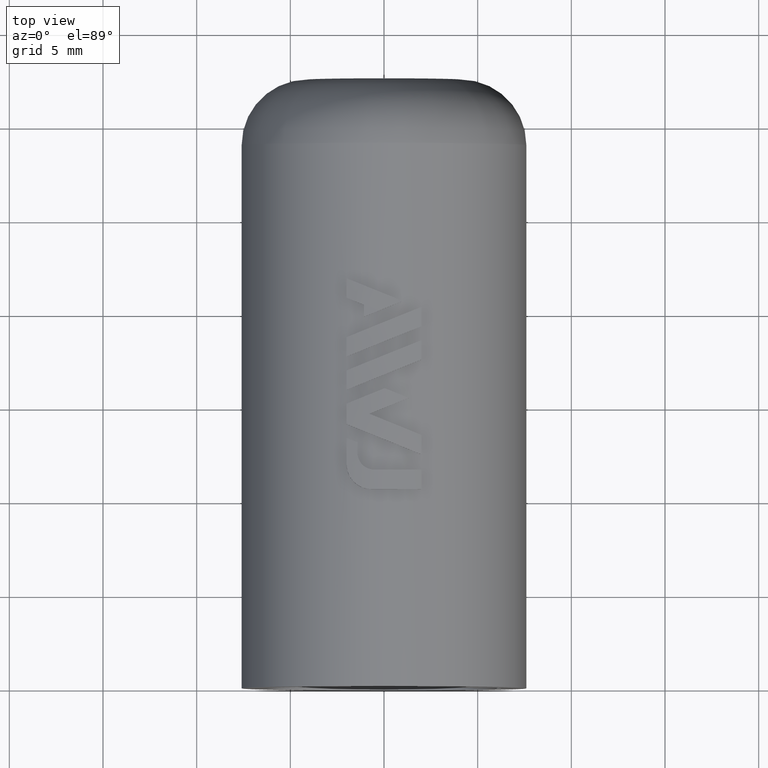
[diagram: clean part render]
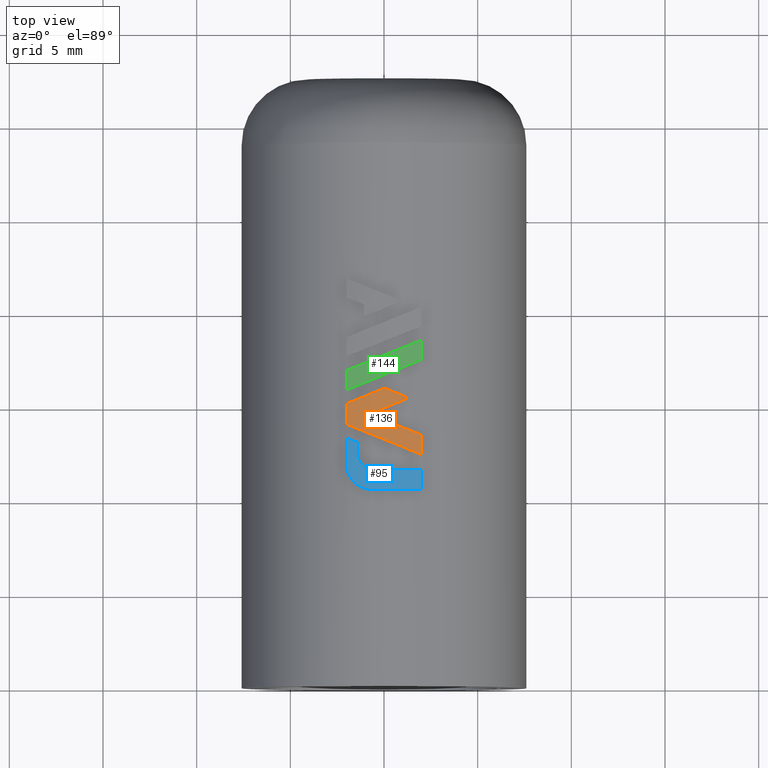
[diagram: same view with three faces highlighted in distinct colors, each labeled with its STEP entity id]
A machine part, top view with three faces highlighted in distinct colors.
Their STEP definitions:

[orange] entity #136 — the highlighted cylindrical surface (partial cylindrical patch) has radius 7.8 mm, axis along (-0, 1, 0).
#136=ADVANCED_FACE('',(#278),#279,.T.);
#278=FACE_OUTER_BOUND('',#1803,.T.);
#279=CYLINDRICAL_SURFACE('',#1804,7.8);
#1803=EDGE_LOOP('',(#2319,#2320,#2321,#2322,#2323,#2324,#2325));
#1804=AXIS2_PLACEMENT_3D('',#2326,#2327,#2328);
#2319=ORIENTED_EDGE('',*,*,#2712,.F.);
#2320=ORIENTED_EDGE('',*,*,#2713,.F.);
#2321=ORIENTED_EDGE('',*,*,#2714,.F.);
#2322=ORIENTED_EDGE('',*,*,#2715,.F.);
#2323=ORIENTED_EDGE('',*,*,#2716,.F.);
#2324=ORIENTED_EDGE('',*,*,#2717,.F.);
#2325=ORIENTED_EDGE('',*,*,#2718,.F.);
#2326=CARTESIAN_POINT('',(0.0,29.5367470448046,0.0));
#2327=DIRECTION('',(-0.0,1.0,0.0));
#2328=DIRECTION('',(1.0,0.0,-6.12323399573677E-17));
#2712=EDGE_CURVE('',#3045,#3046,#3047,.T.);
#2713=EDGE_CURVE('',#3048,#3045,#3049,.F.);
#2714=EDGE_CURVE('',#3050,#3048,#3051,.T.);
#2715=EDGE_CURVE('',#3052,#3050,#3053,.T.);
#2716=EDGE_CURVE('',#3054,#3052,#3055,.T.);
#2717=EDGE_CURVE('',#3056,#3054,#3057,.T.);
#2718=EDGE_CURVE('',#3046,#3056,#3058,.T.);
#3045=VERTEX_POINT('',#4174);
#3046=VERTEX_POINT('',#4175);
#3047=ELLIPSE('',#4176,8.41277677264249,7.8);
#3048=VERTEX_POINT('',#4177);
#3049=LINE('',#4178,#4179);
#3050=VERTEX_POINT('',#4180);
#3051=ELLIPSE('',#4181,8.41251188769509,7.8);
#3052=VERTEX_POINT('',#4182);
#3053=LINE('',#4183,#4184);
#3054=VERTEX_POINT('',#4185);
#3055=ELLIPSE('',#4186,8.41270980951058,7.8);
#3056=VERTEX_POINT('',#4187);
#3057=ELLIPSE('',#4188,8.41262551840312,7.8);
#3058=ELLIPSE('',#4189,8.41236337548325,7.8);
#4174=CARTESIAN_POINT('',(-1.998,15.067093832,7.53976100416983));
#4175=CARTESIAN_POINT('',(0.0363609360000095,15.889172264,7.79991524840708));
#4176=AXIS2_PLACEMENT_3D('',#4621,#4622,#4623);
#4177=CARTESIAN_POINT('',(-1.998,13.976331464,7.53976100416983));
#4178=CARTESIAN_POINT('',(-1.998,29.5367470448046,7.53976100416983));
#4179=VECTOR('',#4624,1000.0);
#4180=CARTESIAN_POINT('',(1.99507670400001,12.363104528,7.54053505695428));
#4181=AXIS2_PLACEMENT_3D('',#4625,#4626,#4627);
#4182=CARTESIAN_POINT('',(1.99507670400001,13.394956088,7.54053505695428));
#4183=CARTESIAN_POINT('',(1.99507670400001,29.5367470448046,7.54053505695428));
#4184=VECTOR('',#4628,1000.0);
#4185=CARTESIAN_POINT('',(-0.793697063999991,14.521826312,7.75951319159893));
#4186=AXIS2_PLACEMENT_3D('',#4629,#4630,#4631);
#4187=CARTESIAN_POINT('',(1.31354558400002,15.373246928,7.68860182339767));
#4188=AXIS2_PLACEMENT_3D('',#4632,#4633,#4634);
#4189=AXIS2_PLACEMENT_3D('',#4635,#4636,#4637);
#4621=CARTESIAN_POINT('',(0.0,15.874478931699,0.0));
#4622=DIRECTION('',(-0.374662721697119,0.927161175292898,1.84889274661174E-32));
#4623=DIRECTION('',(-0.927161175292898,-0.374662721697119,-2.46519032881566E-32));
#4624=DIRECTION('',(0.0,-1.0,0.0));
#4625=CARTESIAN_POINT('',(0.0,13.1691274814421,0.0));
#4626=DIRECTION('',(-0.374590469627021,-0.927190368837278,-1.23259516440783E-32));
#4627=DIRECTION('',(0.927190368837278,-0.374590469627021,-2.46519032881566E-32));
#4628=DIRECTION('',(0.0,-1.0,0.0));
#4629=CARTESIAN_POINT('',(0.0,14.2011141773118,0.0));
#4630=DIRECTION('',(0.37464445827513,0.927168555271227,1.54074395550979E-32));
#4631=DIRECTION('',(0.927168555271227,-0.37464445827513,1.62665248481549E-48));
#4632=CARTESIAN_POINT('',(0.0,14.8425155519362,0.0));
#4633=DIRECTION('',(0.374621466961797,-0.927177845125406,3.6977854932235E-32));
#4634=DIRECTION('',(-0.927177845125406,-0.374621466961797,-4.93038065763132E-32));
#4635=CARTESIAN_POINT('',(0.0,15.9038604519237,0.0));
#4636=DIRECTION('',(0.374549951201191,0.927206737494495,3.38963670212154E-32));
#4637=DIRECTION('',(0.927206737494495,-0.374549951201191,2.46519032881566E-32));

[blue] entity #95 — the highlighted cylindrical surface (partial cylindrical patch) has radius 7.8 mm, axis along (-0, 1, 0).
#95=ADVANCED_FACE('',(#191),#192,.T.);
#191=FACE_OUTER_BOUND('',#1716,.T.);
#192=CYLINDRICAL_SURFACE('',#1717,7.8);
#1716=EDGE_LOOP('',(#1936,#1937,#1938,#1939,#1940,#1941,#1942,#1943,#1944,#1945,#1946,#1947,#1948,#1949,#1950,#1951,#1952,#1953,#1954,#1955,#1956,#1957,#1958,#1959,#1960,#1961,#1962,#1963,#1964,#1965,#1966,#1967,#1968,#1969,#1970,#1971,#1972,#1973,#1974,#1975));
#1717=AXIS2_PLACEMENT_3D('',#1976,#1977,#1978);
#1936=ORIENTED_EDGE('',*,*,#2571,.T.);
#1937=ORIENTED_EDGE('',*,*,#2572,.T.);
#1938=ORIENTED_EDGE('',*,*,#2573,.T.);
#1939=ORIENTED_EDGE('',*,*,#2574,.T.);
#1940=ORIENTED_EDGE('',*,*,#2575,.T.);
#1941=ORIENTED_EDGE('',*,*,#2576,.T.);
#1942=ORIENTED_EDGE('',*,*,#2577,.T.);
#1943=ORIENTED_EDGE('',*,*,#2578,.T.);
#1944=ORIENTED_EDGE('',*,*,#2579,.T.);
#1945=ORIENTED_EDGE('',*,*,#2580,.T.);
#1946=ORIENTED_EDGE('',*,*,#2581,.T.);
#1947=ORIENTED_EDGE('',*,*,#2582,.T.);
#1948=ORIENTED_EDGE('',*,*,#2583,.T.);
#1949=ORIENTED_EDGE('',*,*,#2584,.T.);
#1950=ORIENTED_EDGE('',*,*,#2585,.T.);
#1951=ORIENTED_EDGE('',*,*,#2586,.T.);
#1952=ORIENTED_EDGE('',*,*,#2587,.T.);
#1953=ORIENTED_EDGE('',*,*,#2588,.T.);
#1954=ORIENTED_EDGE('',*,*,#2589,.T.);
#1955=ORIENTED_EDGE('',*,*,#2590,.T.);
#1956=ORIENTED_EDGE('',*,*,#2591,.T.);
#1957=ORIENTED_EDGE('',*,*,#2592,.T.);
#1958=ORIENTED_EDGE('',*,*,#2593,.T.);
#1959=ORIENTED_EDGE('',*,*,#2594,.T.);
#1960=ORIENTED_EDGE('',*,*,#2595,.T.);
#1961=ORIENTED_EDGE('',*,*,#2596,.T.);
#1962=ORIENTED_EDGE('',*,*,#2597,.T.);
#1963=ORIENTED_EDGE('',*,*,#2598,.T.);
#1964=ORIENTED_EDGE('',*,*,#2599,.T.);
#1965=ORIENTED_EDGE('',*,*,#2600,.T.);
#1966=ORIENTED_EDGE('',*,*,#2601,.T.);
#1967=ORIENTED_EDGE('',*,*,#2602,.T.);
#1968=ORIENTED_EDGE('',*,*,#2603,.T.);
#1969=ORIENTED_EDGE('',*,*,#2604,.T.);
#1970=ORIENTED_EDGE('',*,*,#2605,.T.);
#1971=ORIENTED_EDGE('',*,*,#2606,.T.);
#1972=ORIENTED_EDGE('',*,*,#2607,.T.);
#1973=ORIENTED_EDGE('',*,*,#2608,.T.);
#1974=ORIENTED_EDGE('',*,*,#2609,.T.);
#1975=ORIENTED_EDGE('',*,*,#2610,.T.);
#1976=CARTESIAN_POINT('',(0.0,27.0748331428391,0.0));
#1977=DIRECTION('',(-0.0,1.0,0.0));
#1978=DIRECTION('',(1.0,0.0,-6.12323399573677E-17));
#2571=EDGE_CURVE('',#2804,#2805,#2806,.T.);
#2572=EDGE_CURVE('',#2805,#2807,#2808,.T.);
#2573=EDGE_CURVE('',#2807,#2809,#2810,.T.);
#2574=EDGE_CURVE('',#2809,#2811,#2812,.T.);
#2575=EDGE_CURVE('',#2811,#2813,#2814,.T.);
#2576=EDGE_CURVE('',#2813,#2815,#2816,.T.);
#2577=EDGE_CURVE('',#2815,#2817,#2818,.T.);
#2578=EDGE_CURVE('',#2817,#2819,#2820,.T.);
#2579=EDGE_CURVE('',#2819,#2821,#2822,.T.);
#2580=EDGE_CURVE('',#2821,#2823,#2824,.T.);
#2581=EDGE_CURVE('',#2823,#2825,#2826,.T.);
#2582=EDGE_CURVE('',#2825,#2827,#2828,.T.);
#2583=EDGE_CURVE('',#2827,#2829,#2830,.T.);
#2584=EDGE_CURVE('',#2829,#2831,#2832,.T.);
#2585=EDGE_CURVE('',#2831,#2833,#2834,.T.);
#2586=EDGE_CURVE('',#2833,#2835,#2836,.T.);
#2587=EDGE_CURVE('',#2835,#2837,#2838,.F.);
#2588=EDGE_CURVE('',#2837,#2839,#2840,.T.);
#2589=EDGE_CURVE('',#2839,#2841,#2842,.T.);
#2590=EDGE_CURVE('',#2841,#2843,#2844,.T.);
#2591=EDGE_CURVE('',#2843,#2845,#2846,.T.);
#2592=EDGE_CURVE('',#2845,#2847,#2848,.F.);
#2593=EDGE_CURVE('',#2847,#2849,#2850,.T.);
#2594=EDGE_CURVE('',#2849,#2851,#2852,.T.);
#2595=EDGE_CURVE('',#2851,#2853,#2854,.T.);
#2596=EDGE_CURVE('',#2853,#2855,#2856,.T.);
#2597=EDGE_CURVE('',#2855,#2857,#2858,.T.);
#2598=EDGE_CURVE('',#2857,#2859,#2860,.T.);
#2599=EDGE_CURVE('',#2859,#2861,#2862,.T.);
#2600=EDGE_CURVE('',#2861,#2863,#2864,.T.);
#2601=EDGE_CURVE('',#2863,#2865,#2866,.T.);
#2602=EDGE_CURVE('',#2865,#2867,#2868,.T.);
#2603=EDGE_CURVE('',#2867,#2869,#2870,.T.);
#2604=EDGE_CURVE('',#2869,#2871,#2872,.T.);
#2605=EDGE_CURVE('',#2871,#2873,#2874,.T.);
#2606=EDGE_CURVE('',#2873,#2875,#2876,.T.);
#2607=EDGE_CURVE('',#2875,#2877,#2878,.T.);
#2608=EDGE_CURVE('',#2877,#2879,#2880,.T.);
#2609=EDGE_CURVE('',#2879,#2881,#2882,.T.);
#2610=EDGE_CURVE('',#2881,#2804,#2883,.T.);
#2804=VERTEX_POINT('',#3853);
#2805=VERTEX_POINT('',#3854);
#2806=ELLIPSE('',#3855,11.7650962507718,7.8);
#2807=VERTEX_POINT('',#3856);
#2808=ELLIPSE('',#3857,12.4599259104884,7.8);
#2809=VERTEX_POINT('',#3858);
#2810=ELLIPSE('',#3859,13.2809841174273,7.80000000000001);
#2811=VERTEX_POINT('',#3860);
#2812=ELLIPSE('',#3861,14.2661504048244,7.79999999999999);
#2813=VERTEX_POINT('',#3862);
#2814=ELLIPSE('',#3863,15.4628920495116,7.8);
#2815=VERTEX_POINT('',#3864);
#2816=ELLIPSE('',#3865,16.9057404139397,7.8);
#2817=VERTEX_POINT('',#3866);
#2818=ELLIPSE('',#3867,18.6727673346201,7.8);
#2819=VERTEX_POINT('',#3868);
#2820=ELLIPSE('',#3869,20.8950571016526,7.80000000000001);
#2821=VERTEX_POINT('',#3870);
#2822=ELLIPSE('',#3871,23.7838140842857,7.8);
#2823=VERTEX_POINT('',#3872);
#2824=ELLIPSE('',#3873,27.7092850225379,7.8);
#2825=VERTEX_POINT('',#3874);
#2826=ELLIPSE('',#3875,33.3692059199857,7.8);
#2827=VERTEX_POINT('',#3876);
#2828=ELLIPSE('',#3877,41.3722913109222,7.8);
#2829=VERTEX_POINT('',#3878);
#2830=ELLIPSE('',#3879,53.0787072261212,7.8);
#2831=VERTEX_POINT('',#3880);
#2832=ELLIPSE('',#3881,74.0732230087587,7.8);
#2833=VERTEX_POINT('',#3882);
#2834=ELLIPSE('',#3883,122.953485304083,7.8);
#2835=VERTEX_POINT('',#3884);
#2836=ELLIPSE('',#3885,367.022401513407,7.8);
#2837=VERTEX_POINT('',#3886);
#2838=LINE('',#3887,#3888);
#2839=VERTEX_POINT('',#3889);
#2840=ELLIPSE('',#3890,8.41256841345968,7.80000000000001);
#2841=VERTEX_POINT('',#3891);
#2842=B_SPLINE_CURVE_WITH_KNOTS('',3,(#3892,#3893,#3894,#3895),.UNSPECIFIED.,.F.,.F.,(4,4),(0.00147741781550362,0.00287876255302446),.UNSPECIFIED.);
#2843=VERTEX_POINT('',#3896);
#2844=B_SPLINE_CURVE_WITH_KNOTS('',3,(#3897,#3898,#3899,#3900,#3901,#3902,#3903,#3904,#3905,#3906,#3907,#3908),.UNSPECIFIED.,.F.,.F.,(4,2,2,2,2,4),(0.0,0.000261985729409394,0.000523971458818788,0.00104794291763758,0.00157191437645636,0.00209588583527515),.UNSPECIFIED.);
#2845=VERTEX_POINT('',#3909);
#2846=CIRCLE('',#3910,7.8);
#2847=VERTEX_POINT('',#3911);
#2848=LINE('',#3912,#3913);
#2849=VERTEX_POINT('',#3914);
#2850=CIRCLE('',#3915,7.8);
#2851=VERTEX_POINT('',#3916);
#2852=ELLIPSE('',#3917,7.80237481704781,7.8);
#2853=VERTEX_POINT('',#3918);
#2854=ELLIPSE('',#3919,7.82110616245349,7.8);
#2855=VERTEX_POINT('',#3920);
#2856=ELLIPSE('',#3921,7.8581062261192,7.8);
#2857=VERTEX_POINT('',#3922);
#2858=ELLIPSE('',#3923,7.91347834979809,7.8);
#2859=VERTEX_POINT('',#3924);
#2860=ELLIPSE('',#3925,7.98801108495477,7.8);
#2861=VERTEX_POINT('',#3926);
#2862=ELLIPSE('',#3927,8.08317653005841,7.80000000000001);
#2863=VERTEX_POINT('',#3928);
#2864=ELLIPSE('',#3929,8.20106277822163,7.8);
#2865=VERTEX_POINT('',#3930);
#2866=ELLIPSE('',#3931,8.34385025269713,7.8);
#2867=VERTEX_POINT('',#3932);
#2868=ELLIPSE('',#3933,8.51032923826545,7.8);
#2869=VERTEX_POINT('',#3934);
#2870=ELLIPSE('',#3935,8.70224246327736,7.8);
#2871=VERTEX_POINT('',#3936);
#2872=ELLIPSE('',#3937,8.92239981579579,7.80000000000001);
#2873=VERTEX_POINT('',#3938);
#2874=ELLIPSE('',#3939,9.17534842239278,7.8);
#2875=VERTEX_POINT('',#3940);
#2876=ELLIPSE('',#3941,9.46682861404966,7.80000000000001);
#2877=VERTEX_POINT('',#3942);
#2878=ELLIPSE('',#3943,9.80391155438738,7.8);
#2879=VERTEX_POINT('',#3944);
#2880=ELLIPSE('',#3945,10.1983645079124,7.8);
#2881=VERTEX_POINT('',#3946);
#2882=ELLIPSE('',#3947,10.6512493010373,7.79999999999999);
#2883=ELLIPSE('',#3948,11.1685235657731,7.8);
#3853=CARTESIAN_POINT('',(-1.17945136799999,11.827329728,7.71031091918626));
#3854=CARTESIAN_POINT('',(-1.208268744,11.859870488,7.70584756157768));
#3855=AXIS2_PLACEMENT_3D('',#4314,#4315,#4316);
#3856=CARTESIAN_POINT('',(-1.23548328,11.893771664,7.70153108575434));
#3857=AXIS2_PLACEMENT_3D('',#4317,#4318,#4319);
#3858=CARTESIAN_POINT('',(-1.26099374399998,11.928927584,7.69739532423747));
#3859=AXIS2_PLACEMENT_3D('',#4320,#4321,#4322);
#3860=CARTESIAN_POINT('',(-1.284698904,11.965229912,7.69347442486561));
#3861=AXIS2_PLACEMENT_3D('',#4323,#4324,#4325);
#3862=CARTESIAN_POINT('',(-1.30648332,12.002518808,7.68980502578328));
#3863=AXIS2_PLACEMENT_3D('',#4326,#4327,#4328);
#3864=CARTESIAN_POINT('',(-1.32649528799999,12.041000288,7.68637822715704));
#3865=AXIS2_PLACEMENT_3D('',#4329,#4330,#4331);
#3866=CARTESIAN_POINT('',(-1.34466820799999,12.080527832,7.6832198595637));
#3867=AXIS2_PLACEMENT_3D('',#4332,#4333,#4334);
#3868=CARTESIAN_POINT('',(-1.36093636799999,12.120957584,7.68035495288174));
#3869=AXIS2_PLACEMENT_3D('',#4335,#4336,#4337);
#3870=CARTESIAN_POINT('',(-1.37523405599999,12.162143024,7.67780771387366));
#3871=AXIS2_PLACEMENT_3D('',#4338,#4339,#4340);
#3872=CARTESIAN_POINT('',(-1.38749556,12.203940296,7.67560134914394));
#3873=AXIS2_PLACEMENT_3D('',#4341,#4342,#4343);
#3874=CARTESIAN_POINT('',(-1.397656056,12.246203768,7.67375772025196));
#3875=AXIS2_PLACEMENT_3D('',#4344,#4345,#4346);
#3876=CARTESIAN_POINT('',(-1.404704112,12.28291724,7.67247068145133));
#3877=AXIS2_PLACEMENT_3D('',#4347,#4348,#4349);
#3878=CARTESIAN_POINT('',(-1.410208824,12.319969928,7.67146081738756));
#3879=AXIS2_PLACEMENT_3D('',#4350,#4351,#4352);
#3880=CARTESIAN_POINT('',(-1.41415687199999,12.3572543840001,7.6707340158146));
#3881=AXIS2_PLACEMENT_3D('',#4353,#4354,#4355);
#3882=CARTESIAN_POINT('',(-1.41653493599999,12.394664936,7.67029522085633));
#3883=AXIS2_PLACEMENT_3D('',#4356,#4357,#4358);
#3884=CARTESIAN_POINT('',(-1.41733058399999,12.432095024,7.67014823948392));
#3885=AXIS2_PLACEMENT_3D('',#4359,#4360,#4361);
#3886=CARTESIAN_POINT('',(-1.41733058399998,12.999281048,7.67014823948392));
#3887=CARTESIAN_POINT('',(-1.41733058399998,27.0748331428391,7.67014823948392));
#3888=VECTOR('',#4362,1000.0);
#3889=CARTESIAN_POINT('',(-1.998,13.233886208,7.53976100416983));
#3890=AXIS2_PLACEMENT_3D('',#4363,#4364,#4365);
#3891=CARTESIAN_POINT('',(-1.99799999185211,11.8325414704792,7.53976100632898));
#3892=CARTESIAN_POINT('',(-1.998,13.233886208,7.53976100416983));
#3893=CARTESIAN_POINT('',(-1.99799999728404,12.7667712954931,7.53976100488954));
#3894=CARTESIAN_POINT('',(-1.99799999456808,12.2996563829861,7.53976100560926));
#3895=CARTESIAN_POINT('',(-1.99799999185211,11.8325414704792,7.53976100632898));
#3896=CARTESIAN_POINT('',(-0.666,10.5005414,7.77151491023468));
#3897=CARTESIAN_POINT('',(-1.99799999185211,11.8325414704792,7.53976100632898));
#3898=CARTESIAN_POINT('',(-1.99799019408182,11.7439316031863,7.53976360269045));
#3899=CARTESIAN_POINT('',(-1.9891178966469,11.6568997627817,7.54212988747437));
#3900=CARTESIAN_POINT('',(-1.9548703115108,11.4857665495253,7.55107908258607));
#3901=CARTESIAN_POINT('',(-1.92905123854332,11.400740847317,7.55777499211181));
#3902=CARTESIAN_POINT('',(-1.8281797387315,11.1587737407685,7.58304456614601));
#3903=CARTESIAN_POINT('',(-1.72885870146465,11.0114060196132,7.60701594226436));
#3904=CARTESIAN_POINT('',(-1.48407009154669,10.7673172107618,7.65853640840538));
#3905=CARTESIAN_POINT('',(-1.33634032192768,10.6686693047914,7.68636908654674));
#3906=CARTESIAN_POINT('',(-1.0170802407622,10.5361057887401,7.73509036627771));
#3907=CARTESIAN_POINT('',(-0.842422018792072,10.5005609177496,7.75639597063634));
#3908=CARTESIAN_POINT('',(-0.666,10.5005414,7.77151491023469));
#3909=CARTESIAN_POINT('',(1.99507670400001,10.5005414,7.54053505695428));
#3910=AXIS2_PLACEMENT_3D('',#4366,#4367,#4368);
#3911=CARTESIAN_POINT('',(1.99507670400001,11.544095024,7.54053505695428));
#3912=CARTESIAN_POINT('',(1.99507670400001,27.0748331428391,7.54053505695428));
#3913=VECTOR('',#4369,1000.0);
#3914=CARTESIAN_POINT('',(-0.529330583999991,11.544095024,7.78201832000171));
#3915=AXIS2_PLACEMENT_3D('',#4370,#4371,#4372);
#3916=CARTESIAN_POINT('',(-0.572258279999991,11.545154408,7.7789793971299));
#3917=AXIS2_PLACEMENT_3D('',#4373,#4374,#4375);
#3918=CARTESIAN_POINT('',(-0.615165551999994,11.548313024,7.7757039130636));
#3919=AXIS2_PLACEMENT_3D('',#4376,#4377,#4378);
#3920=CARTESIAN_POINT('',(-0.657906767999975,11.553539792,7.77220423590501));
#3921=AXIS2_PLACEMENT_3D('',#4379,#4380,#4381);
#3922=CARTESIAN_POINT('',(-0.700336295999985,11.560803632,7.76849593373807));
#3923=AXIS2_PLACEMENT_3D('',#4382,#4383,#4384);
#3924=CARTESIAN_POINT('',(-0.742307615999996,11.570074352,7.76459782623855));
#3925=AXIS2_PLACEMENT_3D('',#4385,#4386,#4387);
#3926=CARTESIAN_POINT('',(-0.783674207999981,11.58132176,7.76053185907484));
#3927=AXIS2_PLACEMENT_3D('',#4388,#4389,#4390);
#3928=CARTESIAN_POINT('',(-0.824290439999991,11.594513,7.75632292201174));
#3929=AXIS2_PLACEMENT_3D('',#4391,#4392,#4393);
#3930=CARTESIAN_POINT('',(-0.864148319999996,11.609654288,7.75198346754179));
#3931=AXIS2_PLACEMENT_3D('',#4394,#4395,#4396);
#3932=CARTESIAN_POINT('',(-0.903308231999983,11.62674296,7.74751794047624));
#3933=AXIS2_PLACEMENT_3D('',#4397,#4398,#4399);
#3934=CARTESIAN_POINT('',(-0.941648519999992,11.645709752,7.7429515086162));
#3935=AXIS2_PLACEMENT_3D('',#4400,#4401,#4402);
#3936=CARTESIAN_POINT('',(-0.979048415999992,11.666482736,7.73831145658586));
#3937=AXIS2_PLACEMENT_3D('',#4403,#4404,#4405);
#3938=CARTESIAN_POINT('',(-1.01538715199999,11.688993536,7.73362715234924));
#3939=AXIS2_PLACEMENT_3D('',#4406,#4407,#4408);
#3940=CARTESIAN_POINT('',(-1.05054218399999,11.713172888,7.72893014068807));
#3941=AXIS2_PLACEMENT_3D('',#4409,#4410,#4411);
#3942=CARTESIAN_POINT('',(-1.08439274399999,11.738948864,7.72425351582664));
#3943=AXIS2_PLACEMENT_3D('',#4412,#4413,#4414);
#3944=CARTESIAN_POINT('',(-1.11741213599999,11.766761912,7.71954597876844));
#3945=AXIS2_PLACEMENT_3D('',#4415,#4416,#4417);
#3946=CARTESIAN_POINT('',(-1.149131496,11.79625772,7.71488799691226));
#3947=AXIS2_PLACEMENT_3D('',#4418,#4419,#4420);
#3948=AXIS2_PLACEMENT_3D('',#4421,#4422,#4423);
#4314=CARTESIAN_POINT('',(0.0,10.4954859162054,0.0));
#4315=DIRECTION('',(-0.748638877900155,-0.662978001517695,-5.54667823983524E-32));
#4316=DIRECTION('',(0.662978001517695,-0.748638877900155,-2.46519032881566E-32));
#4317=CARTESIAN_POINT('',(0.0,10.3547288480451,0.0));
#4318=DIRECTION('',(-0.779817491661594,-0.626006932628241,-4.93038065763132E-32));
#4319=DIRECTION('',(0.626006932628241,-0.779817491661594,-1.23259516440783E-32));
#4320=CARTESIAN_POINT('',(0.0,10.1911545985863,0.0));
#4321=DIRECTION('',(-0.809365065349924,-0.587305875154602,6.16297582203915E-33));
#4322=DIRECTION('',(0.587305875154602,-0.809365065349925,-1.84889274661174E-32));
#4323=CARTESIAN_POINT('',(0.0,9.99782867976858,0.0));
#4324=DIRECTION('',(-0.837296719685791,-0.546748756929006,-6.16297582203916E-32));
#4325=DIRECTION('',(0.546748756929006,-0.837296719685791,3.08148791101958E-32));
#4326=CARTESIAN_POINT('',(0.0,9.76618065483561,0.0));
#4327=DIRECTION('',(-0.863450573828864,-0.504433451066249,-1.23259516440783E-32));
#4328=DIRECTION('',(0.504433451066249,-0.863450573828864,6.16297582203916E-33));
#4329=CARTESIAN_POINT('',(0.0,9.49025156127408,0.0));
#4330=DIRECTION('',(-0.887201716676645,-0.461381744248745,1.23259516440783E-32));
#4331=DIRECTION('',(0.461381744248745,-0.887201716676645,-1.84889274661174E-32));
#4332=CARTESIAN_POINT('',(0.0,9.1557677077534,0.0));
#4333=DIRECTION('',(-0.90857552317143,-0.417720622777667,-1.23259516440783E-32));
#4334=DIRECTION('',(0.417720622777667,-0.90857552317143,9.24446373305873E-33));
#4335=CARTESIAN_POINT('',(0.0,8.73874841922558,0.0));
#4336=DIRECTION('',(-0.927713085904695,-0.3732940265276,2.46519032881566E-32));
#4337=DIRECTION('',(0.3732940265276,-0.927713085904695,2.1570415377137E-32));
#4338=CARTESIAN_POINT('',(0.0,8.20068997653336,0.0));
#4339=DIRECTION('',(-0.944693648842253,-0.32795412764152,4.93038065763132E-32));
#4340=DIRECTION('',(0.32795412764152,-0.944693648842253,3.08148791101958E-33));
#4341=CARTESIAN_POINT('',(0.0,7.4742163306441,0.0));
#4342=DIRECTION('',(-0.959562961313934,-0.281494091011576,-4.93038065763132E-32));
#4343=DIRECTION('',(0.281494091011576,-0.959562961313934,3.08148791101958E-33));
#4344=CARTESIAN_POINT('',(0.0,6.43253112954168,0.0));
#4345=DIRECTION('',(-0.972297107053996,-0.233748445159385,3.36488471030737E-49));
#4346=DIRECTION('',(0.233748445159385,-0.972297107053996,-6.16297582203916E-33));
#4347=CARTESIAN_POINT('',(0.0,4.96578396463771,0.0));
#4348=DIRECTION('',(-0.98206705091807,-0.188531980048705,-3.69778549322349E-32));
#4349=DIRECTION('',(0.188531980048705,-0.98206705091807,7.70371977754894E-33));
#4350=CARTESIAN_POINT('',(0.0,2.82773353660667,0.0));
#4351=DIRECTION('',(-0.989143686495174,-0.146951582049109,7.39557098644699E-32));
#4352=DIRECTION('',(0.146951582049109,-0.989143686495174,1.15009346733858E-47));
#4353=CARTESIAN_POINT('',(0.0,-0.997717407450773,0.0));
#4354=DIRECTION('',(-0.994440372875624,-0.105301209845799,-2.46519032881566E-32));
#4355=DIRECTION('',(0.105301209845799,-0.994440372875624,1.00148357108136E-32));
#4356=CARTESIAN_POINT('',(0.0,-9.88957715458799,0.0));
#4357=DIRECTION('',(-0.997985741835146,-0.0634386246205985,1.23259516440783E-32));
#4358=DIRECTION('',(0.0634386246205985,-0.997985741835146,-7.70371977754894E-34));
#4359=CARTESIAN_POINT('',(0.0,-54.2441342685978,0.0));
#4360=DIRECTION('',(-0.999774148431832,-0.0212521087754778,4.7801718953436E-52));
#4361=DIRECTION('',(0.0212521087754778,-0.999774148431832,-1.92592994438724E-34));
#4362=DIRECTION('',(0.0,-1.0,0.0));
#4363=CARTESIAN_POINT('',(0.0,12.4266435725794,0.0));
#4364=DIRECTION('',(-0.374605889774887,-0.927184138855905,3.08148791101958E-32));
#4365=DIRECTION('',(0.927184138855905,-0.374605889774887,-6.16297582203916E-32));
#4366=CARTESIAN_POINT('',(0.0,10.5005414,0.0));
#4367=DIRECTION('',(-1.13212029205242E-48,1.0,-1.84889274661175E-32));
#4368=DIRECTION('',(-6.12323399573677E-17,-1.84889274661175E-32,-1.0));
#4369=DIRECTION('',(0.0,-1.0,0.0));
#4370=CARTESIAN_POINT('',(0.0,11.544095024,0.0));
#4371=DIRECTION('',(1.11022302462516E-16,-1.0,1.1690772098883E-32));
#4372=DIRECTION('',(1.0,1.11022302462516E-16,-6.12323399573677E-17));
#4373=CARTESIAN_POINT('',(0.0,11.5310320272951,0.0));
#4374=DIRECTION('',(-0.0246708221697116,-0.999695628945866,1.36741026051494E-32));
#4375=DIRECTION('',(0.999695628945866,-0.0246708221697116,-5.66993775627602E-31));
#4376=CARTESIAN_POINT('',(0.0,11.5030276524388,0.0));
#4377=DIRECTION('',(-0.0734162756428647,-0.99730138397113,1.77185554883625E-32));
#4378=DIRECTION('',(0.99730138397113,-0.0734162756428647,-1.84889274661174E-31));
#4379=CARTESIAN_POINT('',(0.0,11.4730852246343,0.0));
#4380=DIRECTION('',(-0.121384450630639,-0.992605568765911,9.24446373305873E-33));
#4381=DIRECTION('',(0.992605568765911,-0.121384450630639,-4.93038065763132E-32));
#4382=CARTESIAN_POINT('',(0.0,11.4409076293781,0.0));
#4383=DIRECTION('',(-0.168742800716728,-0.985660117487907,3.38963670212153E-32));
#4384=DIRECTION('',(0.985660117487907,-0.168742800716728,-7.39557098644699E-32));
#4385=CARTESIAN_POINT('',(0.0,11.4061117684593,0.0));
#4386=DIRECTION('',(-0.215683429399369,-0.976463342006512,7.02825331619414E-49));
#4387=DIRECTION('',(0.976463342006512,-0.215683429399369,-1.23259516440783E-32));
#4388=CARTESIAN_POINT('',(0.0,11.3682439324514,0.0));
#4389=DIRECTION('',(-0.26237064668708,-0.96496717237272,3.08148791101958E-32));
#4390=DIRECTION('',(0.96496717237272,-0.26237064668708,-4.93038065763132E-32));
#4391=CARTESIAN_POINT('',(0.0,11.3268019768864,0.0));
#4392=DIRECTION('',(-0.308894700261042,-0.951096243369009,3.08148791101958E-32));
#4393=DIRECTION('',(0.951096243369009,-0.308894700261042,-4.93038065763132E-32));
#4394=CARTESIAN_POINT('',(0.0,11.2813799646332,0.0));
#4395=DIRECTION('',(-0.355121303699907,-0.934820228524436,1.54074395550979E-32));
#4396=DIRECTION('',(0.934820228524436,-0.355121303699907,8.20038405605886E-49));
#4397=CARTESIAN_POINT('',(0.0,11.2325557082117,0.0));
#4398=DIRECTION('',(-0.399958423246429,-0.916533283451414,5.27751759781003E-48));
#4399=DIRECTION('',(0.916533283451414,-0.399958423246429,-7.39557098644699E-32));
#4400=CARTESIAN_POINT('',(0.0,11.1798798757108,0.0));
#4401=DIRECTION('',(-0.443406376070305,-0.896320693535634,2.77333911991762E-32));
#4402=DIRECTION('',(0.896320693535634,-0.443406376070305,6.16297582203916E-33));
#4403=CARTESIAN_POINT('',(0.0,11.1226909275734,0.0));
#4404=DIRECTION('',(-0.485558336109811,-0.874204268025656,-1.84889274661174E-32));
#4405=DIRECTION('',(0.874204268025656,-0.485558336109811,-2.46519032881566E-32));
#4406=CARTESIAN_POINT('',(0.0,11.0599904495626,0.0));
#4407=DIRECTION('',(-0.526614909044718,-0.85010395692046,2.46519032881566E-32));
#4408=DIRECTION('',(0.85010395692046,-0.526614909044718,-4.93038065763132E-32));
#4409=CARTESIAN_POINT('',(0.0,10.9906183115233,0.0));
#4410=DIRECTION('',(-0.56669221696518,-0.823929566911571,5.54667823983523E-32));
#4411=DIRECTION('',(0.823929566911571,-0.56669221696518,-8.62816615085481E-32));
#4412=CARTESIAN_POINT('',(0.0,10.9132230460541,0.0));
#4413=DIRECTION('',(-0.605821216929001,-0.795600812668429,2.46519032881566E-32));
#4414=DIRECTION('',(0.795600812668429,-0.605821216929001,-3.08148791101958E-32));
#4415=CARTESIAN_POINT('',(0.0,10.8255381191954,0.0));
#4416=DIRECTION('',(-0.644233917102612,-0.76482851676348,1.23259516440783E-32));
#4417=DIRECTION('',(0.76482851676348,-0.644233917102612,2.46519032881566E-32));
#4418=CARTESIAN_POINT('',(0.0,10.7276812426446,0.0));
#4419=DIRECTION('',(-0.680973065297795,-0.73230846256132,-3.08148791101958E-32));
#4420=DIRECTION('',(0.73230846256132,-0.680973065297795,0.0));
#4421=CARTESIAN_POINT('',(0.0,10.6186200625336,0.0));
#4422=DIRECTION('',(-0.71571611242668,-0.698391327561304,4.31408307542741E-32));
#4423=DIRECTION('',(0.698391327561304,-0.71571611242668,-3.69778549322349E-32));

[green] entity #144 — the highlighted cylindrical surface (partial cylindrical patch) has radius 7.8 mm, axis along (-0, 1, 0).
#144=ADVANCED_FACE('',(#294),#295,.T.);
#294=FACE_OUTER_BOUND('',#1819,.T.);
#295=CYLINDRICAL_SURFACE('',#1820,7.8);
#1819=EDGE_LOOP('',(#2378,#2379,#2380,#2381));
#1820=AXIS2_PLACEMENT_3D('',#2382,#2383,#2384);
#2378=ORIENTED_EDGE('',*,*,#2726,.F.);
#2379=ORIENTED_EDGE('',*,*,#2727,.F.);
#2380=ORIENTED_EDGE('',*,*,#2728,.F.);
#2381=ORIENTED_EDGE('',*,*,#2729,.F.);
#2382=CARTESIAN_POINT('',(0.0,32.2814862063271,0.0));
#2383=DIRECTION('',(-0.0,1.0,0.0));
#2384=DIRECTION('',(1.0,0.0,-6.12323399573677E-17));
#2726=EDGE_CURVE('',#3066,#3067,#3068,.T.);
#2727=EDGE_CURVE('',#3069,#3066,#3070,.F.);
#2728=EDGE_CURVE('',#3071,#3069,#3072,.T.);
#2729=EDGE_CURVE('',#3067,#3071,#3073,.T.);
#3066=VERTEX_POINT('',#4204);
#3067=VERTEX_POINT('',#4205);
#3068=ELLIPSE('',#4206,8.41269708334597,7.79999999999999);
#3069=VERTEX_POINT('',#4207);
#3070=LINE('',#4208,#4209);
#3071=VERTEX_POINT('',#4210);
#3072=ELLIPSE('',#4211,8.41269773319925,7.79999999999999);
#3073=LINE('',#4212,#4213);
#4204=CARTESIAN_POINT('',(-1.998,16.84137644,7.53976100416983));
#4205=CARTESIAN_POINT('',(1.99507670400001,18.454856456,7.54053505695428));
#4206=AXIS2_PLACEMENT_3D('',#4645,#4646,#4647);
#4207=CARTESIAN_POINT('',(-1.998,15.8095382,7.53976100416983));
#4208=CARTESIAN_POINT('',(-1.998,32.2814862063271,7.53976100416983));
#4209=VECTOR('',#4648,1000.0);
#4210=CARTESIAN_POINT('',(1.99507670400001,17.423019104,7.54053505695428));
#4211=AXIS2_PLACEMENT_3D('',#4649,#4650,#4651);
#4212=CARTESIAN_POINT('',(1.99507670400001,32.2814862063271,7.54053505695428));
#4213=VECTOR('',#4652,1000.0);
#4645=CARTESIAN_POINT('',(0.0,17.6487070551967,0.0));
#4646=DIRECTION('',(-0.374640987210496,0.927169957829709,2.46519032881566E-32));
#4647=DIRECTION('',(-0.927169957829709,-0.374640987210496,-1.23259516440783E-32));
#4648=DIRECTION('',(0.0,-1.0,0.0));
#4649=CARTESIAN_POINT('',(0.0,16.6168692595218,0.0));
#4650=DIRECTION('',(0.374641164459304,-0.927169886208874,-9.24446373305874E-33));
#4651=DIRECTION('',(-0.927169886208874,-0.374641164459304,-2.46519032881566E-32));
#4652=DIRECTION('',(0.0,-1.0,0.0));